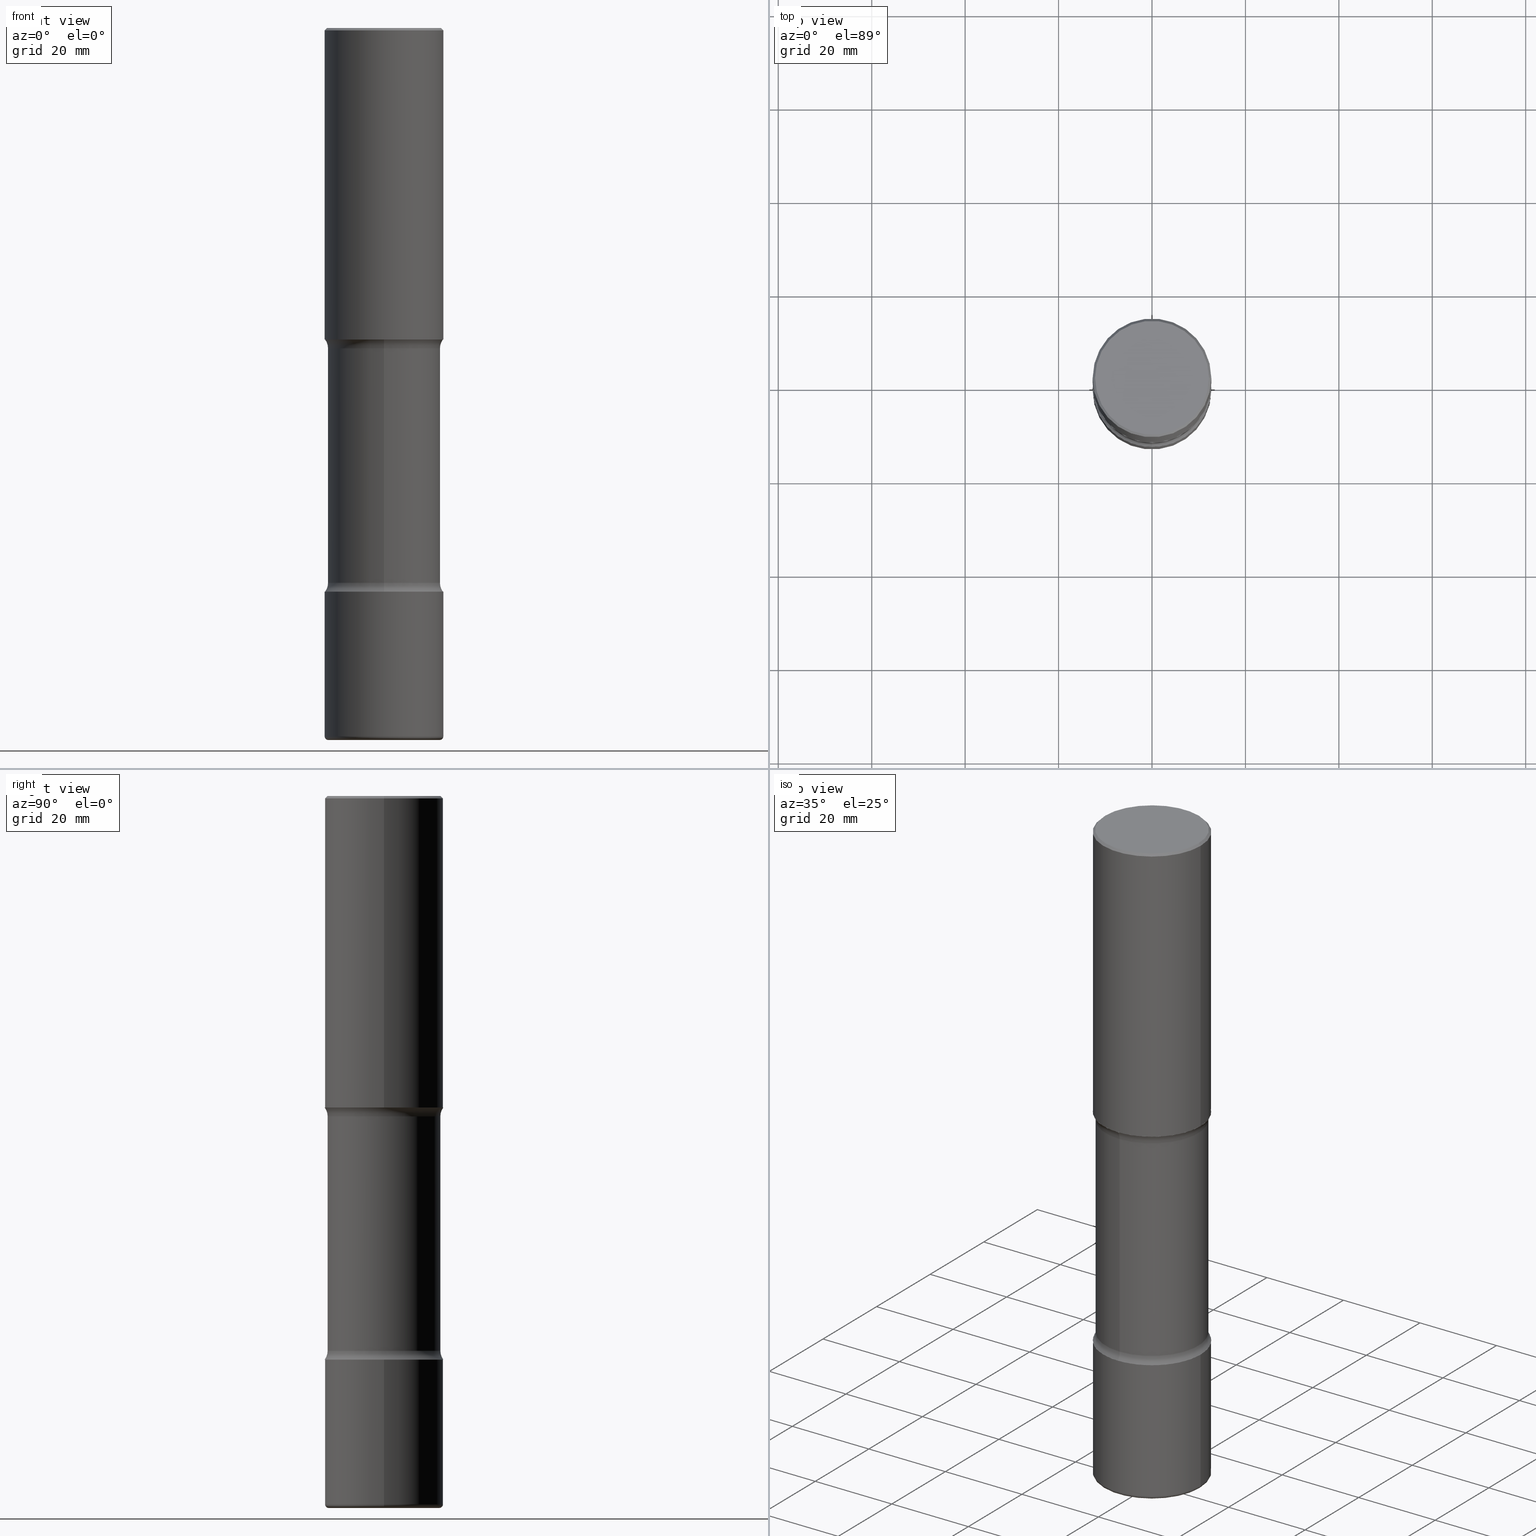
[diagram: canonical four-view strip — front | top / right | iso, engineering-drawing reading convention]
A machine part, canonical four-view strip (front | top / right | iso — engineering-drawing reading convention). The complete STEP part file that produces these views, byte-faithful:
ISO-10303-21;
HEADER;
FILE_DESCRIPTION (( 'STEP AP203' ),
    '1' );
FILE_NAME ('35139.STEP',
    '2024-03-01T23:17:25',
    ( '' ),
    ( '' ),
    'SwSTEP 2.0',
    'SolidWorks 2023',
    '' );
FILE_SCHEMA (( 'CONFIG_CONTROL_DESIGN' ));
ENDSEC;

DATA;
#1 = DIRECTION ( 'NONE',  ( 6.982962677686265133E-15, 1.000000000000000000, -3.379601449890201672E-15 ) ) ;
#2 = SHAPE_DEFINITION_REPRESENTATION ( #122, #461 ) ;
#3 = DIRECTION ( 'NONE',  ( -2.445468806185136597E-29, 3.491481338843145583E-15, 1.000000000000000000 ) ) ;
#4 = DIRECTION ( 'NONE',  ( 6.982962677686266711E-15, 1.000000000000000000, -3.278217592397112312E-15 ) ) ;
#5 = EDGE_CURVE ( 'NONE', #115, #240, #436, .T. ) ;
#6 = VECTOR ( 'NONE', #318, 39.37007874015748143 ) ;
#7 = ORIENTED_EDGE ( 'NONE', *, *, #510, .T. ) ;
#8 =( GEOMETRIC_REPRESENTATION_CONTEXT ( 3 ) GLOBAL_UNCERTAINTY_ASSIGNED_CONTEXT ( ( #18 ) ) GLOBAL_UNIT_ASSIGNED_CONTEXT ( ( #335, #535, #496 ) ) REPRESENTATION_CONTEXT ( 'NONE', 'WORKASPACE' ) );
#9 = ORIENTED_EDGE ( 'NONE', *, *, #444, .T. ) ;
#10 = CARTESIAN_POINT ( 'NONE',  ( 0.4700000000000003064, -2.412613605140612911E-14, -5.970000000000000639 ) ) ;
#11 = CC_DESIGN_APPROVAL ( #453, ( #282 ) ) ;
#12 = CARTESIAN_POINT ( 'NONE',  ( 4.890937612370298557E-31, -6.982962677686327354E-17, -0.02000000000000010103 ) ) ;
#13 = CC_DESIGN_PERSON_AND_ORGANIZATION_ASSIGNMENT ( #377, #379, ( #374 ) ) ;
#14 = VERTEX_POINT ( 'NONE', #60 ) ;
#15 = DIRECTION ( 'NONE',  ( -2.445468806185136597E-29, 3.491481338843145583E-15, 1.000000000000000000 ) ) ;
#16 = CARTESIAN_POINT ( 'NONE',  ( -0.4700000000000003064, -1.745038354453974416E-14, -5.999999999999999112 ) ) ;
#17 = ORIENTED_EDGE ( 'NONE', *, *, #52, .F. ) ;
#18 = UNCERTAINTY_MEASURE_WITH_UNIT (LENGTH_MEASURE( 1.000000000000000082E-05 ), #335, 'distance_accuracy_value', 'NONE');
#19 = EDGE_LOOP ( 'NONE', ( #72, #482, #411, #328 ) ) ;
#20 = DIRECTION ( 'NONE',  ( -2.445468806185136877E-29, 3.491481338843145188E-15, 1.000000000000000000 ) ) ;
#21 = LOCAL_TIME ( 18, 17, 25.00000000000000000, #416 ) ;
#22 = CALENDAR_DATE ( 2024, 1, 3 ) ;
#23 = ORIENTED_EDGE ( 'NONE', *, *, #486, .T. ) ;
#24 = PERSON_AND_ORGANIZATION ( #340, #230 ) ;
#25 = EDGE_CURVE ( 'NONE', #372, #491, #249, .T. ) ;
#26 = ORIENTED_EDGE ( 'NONE', *, *, #125, .T. ) ;
#27 = CARTESIAN_POINT ( 'NONE',  ( 0.5000000000000002220, -2.007601769834807990E-14, -4.750000000000000888 ) ) ;
#28 = APPLICATION_PROTOCOL_DEFINITION ( 'international standard', 'config_control_design', 1994, #487 ) ;
#29 = TOROIDAL_SURFACE ( 'NONE', #530, 0.5999999999999999778, 0.1249999999999999584 ) ;
#30 = LOCAL_TIME ( 18, 17, 25.00000000000000000, #494 ) ;
#31 = SECURITY_CLASSIFICATION_LEVEL ( 'unclassified' ) ;
#32 = ADVANCED_FACE ( 'NONE', ( #75 ), #106, .T. ) ;
#33 = ADVANCED_FACE ( 'NONE', ( #35 ), #526, .F. ) ;
#34 = FACE_OUTER_BOUND ( 'NONE', #151, .T. ) ;
#35 = FACE_OUTER_BOUND ( 'NONE', #442, .T. ) ;
#36 = DIRECTION ( 'NONE',  ( -2.445468806185136597E-29, 3.491481338843145583E-15, 1.000000000000000000 ) ) ;
#37 = CARTESIAN_POINT ( 'NONE',  ( 1.467281283711081734E-28, -2.094888803305886955E-14, -5.999999999999999112 ) ) ;
#38 = CYLINDRICAL_SURFACE ( 'NONE', #492, 0.4749999999999999778 ) ;
#39 = AXIS2_PLACEMENT_3D ( 'NONE', #127, #402, #433 ) ;
#40 = AXIS2_PLACEMENT_3D ( 'NONE', #37, #3, #429 ) ;
#41 = DIRECTION ( 'NONE',  ( 1.000000000000000000, -6.982962677686269077E-15, 4.883557194083114022E-29 ) ) ;
#42 = CC_DESIGN_PERSON_AND_ORGANIZATION_ASSIGNMENT ( #548, #294, ( #428 ) ) ;
#43 = DIRECTION ( 'NONE',  ( 2.523594115079346297E-29, -3.379601449890201278E-15, -1.000000000000000000 ) ) ;
#44 = DIRECTION ( 'NONE',  ( -2.445468806185136597E-29, 3.491481338843145583E-15, 1.000000000000000000 ) ) ;
#45 = EDGE_CURVE ( 'NONE', #112, #403, #479, .T. ) ;
#46 = CARTESIAN_POINT ( 'NONE',  ( 6.459692832343351385E-29, -9.631888214401318406E-15, -2.700000000000001954 ) ) ;
#47 = AXIS2_PLACEMENT_3D ( 'NONE', #258, #83, #546 ) ;
#48 = CIRCLE ( 'NONE', #322, 0.5000000000000004441 ) ;
#49 = APPROVAL_PERSON_ORGANIZATION ( #92, #453, #183 ) ;
#50 = VERTEX_POINT ( 'NONE', #279 ) ;
#51 = DIRECTION ( 'NONE',  ( -2.445468806185136597E-29, 3.491481338843145583E-15, 1.000000000000000000 ) ) ;
#52 = EDGE_CURVE ( 'NONE', #147, #14, #131, .T. ) ;
#53 = ADVANCED_FACE ( 'NONE', ( #362 ), #305, .T. ) ;
#54 = DIRECTION ( 'NONE',  ( 2.523594115079346016E-29, -3.379601449890201278E-15, -1.000000000000000000 ) ) ;
#55 = CARTESIAN_POINT ( 'NONE',  ( 1.161597682937940108E-28, -1.658453635950494339E-14, -4.750000000000000888 ) ) ;
#56 = CIRCLE ( 'NONE', #144, 0.4700000000000003064 ) ;
#57 = ORIENTED_EDGE ( 'NONE', *, *, #527, .T. ) ;
#58 = ADVANCED_FACE ( 'NONE', ( #34 ), #339, .T. ) ;
#59 = CIRCLE ( 'NONE', #431, 0.4799999999999998712 ) ;
#60 = CARTESIAN_POINT ( 'NONE',  ( 0.5000000000000001110, -2.433562493173671900E-14, -5.970000000000000639 ) ) ;
#61 = CARTESIAN_POINT ( 'NONE',  ( -3.430248998885706617E-15, -0.5000000000000099920, -2.624999999999999556 ) ) ;
#62 = ORIENTED_EDGE ( 'NONE', *, *, #351, .T. ) ;
#63 = CARTESIAN_POINT ( 'NONE',  ( 3.316907271901089495E-15, 0.4749999999999836020, -4.675000000000001599 ) ) ;
#64 = ORIENTED_EDGE ( 'NONE', *, *, #549, .F. ) ;
#65 = ORIENTED_EDGE ( 'NONE', *, *, #330, .T. ) ;
#66 = CARTESIAN_POINT ( 'NONE',  ( 3.491481338843251684E-15, 0.4999999999999837352, -4.750000000000002665 ) ) ;
#67 = ORIENTED_EDGE ( 'NONE', *, *, #52, .T. ) ;
#68 = COORDINATED_UNIVERSAL_TIME_OFFSET ( 5, 0, .BEHIND. ) ;
#69 = CIRCLE ( 'NONE', #465, 0.1249999999999999584 ) ;
#70 = AXIS2_PLACEMENT_3D ( 'NONE', #207, #130, #168 ) ;
#71 = ORIENTED_EDGE ( 'NONE', *, *, #201, .T. ) ;
#72 = ORIENTED_EDGE ( 'NONE', *, *, #311, .T. ) ;
#73 = EDGE_CURVE ( 'NONE', #253, #489, #56, .T. ) ;
#74 = EDGE_LOOP ( 'NONE', ( #200, #445, #323, #523 ) ) ;
#75 = FACE_OUTER_BOUND ( 'NONE', #142, .T. ) ;
#76 = CALENDAR_DATE ( 2024, 1, 3 ) ;
#77 = PERSON_AND_ORGANIZATION ( #340, #230 ) ;
#78 = ADVANCED_FACE ( 'NONE', ( #552 ), #422, .F. ) ;
#79 = VECTOR ( 'NONE', #301, 39.37007874015748143 ) ;
#80 = CARTESIAN_POINT ( 'NONE',  ( -0.5000000000000004441, 3.552713678800504085E-15, -2.459467545127455133E-29 ) ) ;
#81 = CIRCLE ( 'NONE', #406, 0.5000000000000000000 ) ;
#82 = PERSON_AND_ORGANIZATION ( #340, #230 ) ;
#83 = DIRECTION ( 'NONE',  ( 7.105427357601001859E-15, 1.000000000000000000, -3.491481338843145583E-15 ) ) ;
#84 = CARTESIAN_POINT ( 'NONE',  ( -0.4799999999999998712, 3.386736898677838408E-15, 1.280553747027767124E-17 ) ) ;
#85 = APPROVAL ( #211, 'UNSPECIFIED' ) ;
#86 = CARTESIAN_POINT ( 'NONE',  ( 1.459944877292526719E-28, -2.084414359289358249E-14, -5.970000000000000639 ) ) ;
#87 = CIRCLE ( 'NONE', #272, 0.4799999999999998712 ) ;
#88 = ADVANCED_FACE ( 'NONE', ( #179 ), #175, .F. ) ;
#89 = CARTESIAN_POINT ( 'NONE',  ( 1.143256666891551449E-28, -1.632267525909170681E-14, -4.674999999999999822 ) ) ;
#90 = DIRECTION ( 'NONE',  ( 2.523594115079346016E-29, -3.379601449890201278E-15, -1.000000000000000000 ) ) ;
#91 = FACE_OUTER_BOUND ( 'NONE', #525, .T. ) ;
#92 = PERSON_AND_ORGANIZATION ( #340, #230 ) ;
#93 = CARTESIAN_POINT ( 'NONE',  ( 0.000000000000000000, 0.000000000000000000, 0.000000000000000000 ) ) ;
#94 = EDGE_CURVE ( 'NONE', #403, #240, #222, .T. ) ;
#95 = DIRECTION ( 'NONE',  ( 1.000000000000000000, -6.982962677686270655E-15, 0.000000000000000000 ) ) ;
#96 = ADVANCED_FACE ( 'NONE', ( #198 ), #229, .T. ) ;
#97 = AXIS2_PLACEMENT_3D ( 'NONE', #506, #36, #41 ) ;
#98 = CIRCLE ( 'NONE', #307, 0.1249999999999999584 ) ;
#99 = EDGE_LOOP ( 'NONE', ( #107, #169, #358, #334 ) ) ;
#100 = DIRECTION ( 'NONE',  ( 2.523594115079346297E-29, -3.379601449890201278E-15, -1.000000000000000000 ) ) ;
#101 = VERTEX_POINT ( 'NONE', #456 ) ;
#102 = CARTESIAN_POINT ( 'NONE',  ( 1.161597682937940108E-28, -1.658453635950494339E-14, -4.750000000000000888 ) ) ;
#103 = APPROVAL ( #454, 'UNSPECIFIED' ) ;
#104 = EDGE_LOOP ( 'NONE', ( #245, #446, #156, #154 ) ) ;
#105 = CARTESIAN_POINT ( 'NONE',  ( -0.5000000000000000000, 3.421651712066270057E-15, -0.02000000000000010103 ) ) ;
#106 = CONICAL_SURFACE ( 'NONE', #539, 0.5000000000000000000, 0.7853981633974485010 ) ;
#107 = ORIENTED_EDGE ( 'NONE', *, *, #549, .T. ) ;
#108 = VECTOR ( 'NONE', #43, 39.37007874015748143 ) ;
#109 = DIRECTION ( 'NONE',  ( 2.523594115079346016E-29, -3.379601449890201278E-15, -1.000000000000000000 ) ) ;
#110 = DIRECTION ( 'NONE',  ( 6.982962677686265133E-15, 1.000000000000000000, -2.300503573612011422E-15 ) ) ;
#111 = VERTEX_POINT ( 'NONE', #27 ) ;
#112 = VERTEX_POINT ( 'NONE', #84 ) ;
#113 = DIRECTION ( 'NONE',  ( 1.000000000000000000, -6.982962677686267499E-15, 0.000000000000000000 ) ) ;
#114 = ORIENTED_EDGE ( 'NONE', *, *, #221, .T. ) ;
#115 = VERTEX_POINT ( 'NONE', #216 ) ;
#116 = EDGE_CURVE ( 'NONE', #147, #441, #497, .T. ) ;
#117 = ORIENTED_EDGE ( 'NONE', *, *, #73, .T. ) ;
#118 = LENGTH_MEASURE_WITH_UNIT ( LENGTH_MEASURE( 0.02539999999999999897 ), #256 );
#119 = CIRCLE ( 'NONE', #146, 0.5000000000000004441 ) ;
#120 = EDGE_LOOP ( 'NONE', ( #234, #528 ) ) ;
#121 = DATE_AND_TIME ( #369, #159 ) ;
#122 = PRODUCT_DEFINITION_SHAPE ( 'NONE', 'NONE',  #428 ) ;
#123 = EDGE_LOOP ( 'NONE', ( #291, #9, #7, #162 ) ) ;
#124 = MANIFOLD_SOLID_BREP ( 'Body-Move/Copy2[2]', #331 ) ;
#125 = EDGE_CURVE ( 'NONE', #489, #147, #447, .T. ) ;
#126 = DATE_AND_TIME ( #22, #30 ) ;
#127 = CARTESIAN_POINT ( 'NONE',  ( 1.161597682937940108E-28, -1.658453635950494339E-14, -4.750000000000000888 ) ) ;
#128 = MANIFOLD_SOLID_BREP ( 'Body-Move/Copy2[1]', #337 ) ;
#129 = DIRECTION ( 'NONE',  ( 1.000000000000000000, -6.982962677686266711E-15, 0.000000000000000000 ) ) ;
#130 = DIRECTION ( 'NONE',  ( 2.438088387897960049E-29, -3.491481338843145188E-15, -1.000000000000000000 ) ) ;
#131 = CIRCLE ( 'NONE', #177, 0.5000000000000005551 ) ;
#132 = MANIFOLD_SOLID_BREP ( 'Body-Move/Copy2[4]', #380 ) ;
#133 = CARTESIAN_POINT ( 'NONE',  ( 4.102919532620488144E-30, -1.777045969450568052E-14, -2.625000000000000444 ) ) ;
#134 = DIRECTION ( 'NONE',  ( 6.982962677686265133E-15, 1.000000000000000000, -3.379601449890201672E-15 ) ) ;
#135 = DIRECTION ( 'NONE',  ( -2.445468806185136597E-29, 3.491481338843145583E-15, 1.000000000000000000 ) ) ;
#136 = AXIS2_PLACEMENT_3D ( 'NONE', #247, #394, #283 ) ;
#137 = CARTESIAN_POINT ( 'NONE',  ( 0.5000000000000004441, -1.265661985330638997E-14, -2.624999999999999556 ) ) ;
#138 = DIRECTION ( 'NONE',  ( 2.523594115079346016E-29, -3.379601449890201278E-15, -1.000000000000000000 ) ) ;
#139 = CARTESIAN_POINT ( 'NONE',  ( 0.5000000000000000000, -3.500078625662629079E-15, -0.02000000000000010103 ) ) ;
#140 = PLANE ( 'NONE',  #280 ) ;
#141 = ADVANCED_FACE ( 'NONE', ( #499 ), #38, .T. ) ;
#142 = EDGE_LOOP ( 'NONE', ( #450, #248, #375, #483 ) ) ;
#143 = DIRECTION ( 'NONE',  ( 1.000000000000000000, -6.982962677686266711E-15, 4.876036955247130525E-29 ) ) ;
#144 = AXIS2_PLACEMENT_3D ( 'NONE', #417, #263, #463 ) ;
#145 = AXIS2_PLACEMENT_3D ( 'NONE', #432, #233, #396 ) ;
#146 = AXIS2_PLACEMENT_3D ( 'NONE', #285, #434, #443 ) ;
#147 = VERTEX_POINT ( 'NONE', #536 ) ;
#148 = DIRECTION ( 'NONE',  ( -2.445468806185136597E-29, 3.491481338843145583E-15, 1.000000000000000000 ) ) ;
#149 = ADVANCED_FACE ( 'NONE', ( #288 ), #254, .F. ) ;
#150 = ORIENTED_EDGE ( 'NONE', *, *, #336, .T. ) ;
#151 = EDGE_LOOP ( 'NONE', ( #522, #67, #293, #210 ) ) ;
#152 = DIRECTION ( 'NONE',  ( 1.000000000000000000, -6.860497997771530774E-15, 4.842169013103094469E-29 ) ) ;
#153 = ADVANCED_FACE ( 'NONE', ( #186 ), #349, .T. ) ;
#154 = ORIENTED_EDGE ( 'NONE', *, *, #393, .F. ) ;
#155 = CARTESIAN_POINT ( 'NONE',  ( -0.5000000000000002220, -1.516162629739875886E-14, -4.750000000000000888 ) ) ;
#156 = ORIENTED_EDGE ( 'NONE', *, *, #389, .T. ) ;
#157 = AXIS2_PLACEMENT_3D ( 'NONE', #133, #302, #378 ) ;
#158 = VERTEX_POINT ( 'NONE', #137 ) ;
#159 = LOCAL_TIME ( 18, 17, 25.00000000000000000, #68 ) ;
#160 = DIMENSIONAL_EXPONENTS ( 1.000000000000000000, 0.000000000000000000, 0.000000000000000000, 0.000000000000000000, 0.000000000000000000, 0.000000000000000000, 0.000000000000000000 ) ;
#161 = CARTESIAN_POINT ( 'NONE',  ( 1.477046947322857785E-28, -2.080903817186768789E-14, -5.999999999999999112 ) ) ;
#162 = ORIENTED_EDGE ( 'NONE', *, *, #221, .F. ) ;
#163 = EDGE_LOOP ( 'NONE', ( #290, #65, #57, #17 ) ) ;
#164 = ADVANCED_FACE ( 'NONE', ( #91 ), #269, .F. ) ;
#165 = CARTESIAN_POINT ( 'NONE',  ( 4.890937612370298557E-31, -6.982962677686327354E-17, -0.02000000000000010103 ) ) ;
#166 = ADVANCED_FACE ( 'NONE', ( #558 ), #140, .F. ) ;
#167 = ORIENTED_EDGE ( 'NONE', *, *, #370, .F. ) ;
#168 = DIRECTION ( 'NONE',  ( -1.000000000000000000, 6.982962677686265922E-15, -4.876176775795935793E-29 ) ) ;
#169 = ORIENTED_EDGE ( 'NONE', *, *, #370, .T. ) ;
#170 = DIRECTION ( 'NONE',  ( -1.000000000000000000, 6.982962677686265922E-15, -4.876176775795935793E-29 ) ) ;
#171 = AXIS2_PLACEMENT_3D ( 'NONE', #188, #421, #426 ) ;
#172 = ORIENTED_EDGE ( 'NONE', *, *, #201, .F. ) ;
#173 = DIRECTION ( 'NONE',  ( 1.000000000000000000, -6.982962677686264344E-15, 0.000000000000000000 ) ) ;
#174 = DIRECTION ( 'NONE',  ( -2.445468806185136597E-29, 3.491481338843145583E-15, 1.000000000000000000 ) ) ;
#175 = PLANE ( 'NONE',  #157 ) ;
#176 = MECHANICAL_CONTEXT ( 'NONE', #205, 'mechanical' ) ;
#177 = AXIS2_PLACEMENT_3D ( 'NONE', #241, #15, #197 ) ;
#178 = DIRECTION ( 'NONE',  ( 1.000000000000000000, -6.982962677686266711E-15, 4.876176775795935232E-29 ) ) ;
#179 = FACE_OUTER_BOUND ( 'NONE', #397, .T. ) ;
#180 = CARTESIAN_POINT ( 'NONE',  ( 6.459692832343351385E-29, -9.631888214401318406E-15, -2.700000000000001954 ) ) ;
#181 = DIRECTION ( 'NONE',  ( -6.982962677686265922E-15, -1.000000000000000000, 3.379601449890201278E-15 ) ) ;
#182 = DIRECTION ( 'NONE',  ( -2.445468806185136597E-29, 3.491481338843145583E-15, 1.000000000000000000 ) ) ;
#183 = APPROVAL_ROLE ( '' ) ;
#184 = CARTESIAN_POINT ( 'NONE',  ( -3.344492773913506542E-15, -0.4750000000000162426, -4.674999999999998934 ) ) ;
#185 = CIRCLE ( 'NONE', #145, 0.1250000000000000278 ) ;
#186 = FACE_OUTER_BOUND ( 'NONE', #99, .T. ) ;
#187 = FACE_OUTER_BOUND ( 'NONE', #192, .T. ) ;
#188 = CARTESIAN_POINT ( 'NONE',  ( 6.253339334835791142E-29, -9.402883278488267648E-15, -2.625000000000000888 ) ) ;
#189 = CARTESIAN_POINT ( 'NONE',  ( 0.5000000000000002220, -3.491481338843134933E-15, 2.438088387897969017E-29 ) ) ;
#190 = CC_DESIGN_PERSON_AND_ORGANIZATION_ASSIGNMENT ( #77, #261, ( #458 ) ) ;
#191 = CIRCLE ( 'NONE', #501, 0.4749999999999999778 ) ;
#192 = EDGE_LOOP ( 'NONE', ( #435, #208, #206, #246 ) ) ;
#193 = DIRECTION ( 'NONE',  ( -6.982962677686266711E-15, -1.000000000000000000, 3.491481338843145583E-15 ) ) ;
#194 = EDGE_CURVE ( 'NONE', #372, #320, #438, .T. ) ;
#195 = DIRECTION ( 'NONE',  ( 2.523594115079346016E-29, -3.379601449890201278E-15, -1.000000000000000000 ) ) ;
#196 = EDGE_LOOP ( 'NONE', ( #326, #329 ) ) ;
#197 = DIRECTION ( 'NONE',  ( 1.000000000000000000, -6.982962677686270655E-15, 0.000000000000000000 ) ) ;
#198 = FACE_OUTER_BOUND ( 'NONE', #19, .T. ) ;
#199 = CARTESIAN_POINT ( 'NONE',  ( 1.142670727074844742E-28, -1.633106625076317916E-14, -4.674999999999999822 ) ) ;
#200 = ORIENTED_EDGE ( 'NONE', *, *, #5, .F. ) ;
#201 = EDGE_CURVE ( 'NONE', #514, #408, #213, .T. ) ;
#202 = AXIS2_PLACEMENT_3D ( 'NONE', #102, #54, #400 ) ;
#203 = DIRECTION ( 'NONE',  ( 6.860497997771532351E-15, 1.000000000000000000, 0.000000000000000000 ) ) ;
#204 = LOCAL_TIME ( 18, 17, 25.00000000000000000, #220 ) ;
#205 = APPLICATION_CONTEXT ( 'configuration controlled 3d designs of mechanical parts and assemblies' ) ;
#206 = ORIENTED_EDGE ( 'NONE', *, *, #393, .T. ) ;
#207 = CARTESIAN_POINT ( 'NONE',  ( 1.467281283711081734E-28, -2.094888803305886955E-14, -5.999999999999999112 ) ) ;
#208 = ORIENTED_EDGE ( 'NONE', *, *, #425, .F. ) ;
#209 = DIRECTION ( 'NONE',  ( 2.438088387897960049E-29, -3.491481338843145188E-15, -1.000000000000000000 ) ) ;
#210 = ORIENTED_EDGE ( 'NONE', *, *, #452, .F. ) ;
#211 = APPROVAL_STATUS ( 'not_yet_approved' ) ;
#212 = ORIENTED_EDGE ( 'NONE', *, *, #486, .F. ) ;
#213 = CIRCLE ( 'NONE', #171, 0.5000000000000005551 ) ;
#214 = DATE_AND_TIME ( #76, #21 ) ;
#215 = CIRCLE ( 'NONE', #560, 0.5000000000000005551 ) ;
#216 = CARTESIAN_POINT ( 'NONE',  ( 0.4799999999999998712, -3.396558832296481704E-15, 1.280553747032483033E-17 ) ) ;
#217 = CARTESIAN_POINT ( 'NONE',  ( 0.000000000000000000, 0.000000000000000000, 0.000000000000000000 ) ) ;
#218 = CARTESIAN_POINT ( 'NONE',  ( 0.000000000000000000, 0.000000000000000000, 0.000000000000000000 ) ) ;
#219 = APPLICATION_PROTOCOL_DEFINITION ( 'international standard', 'config_control_design', 1994, #205 ) ;
#220 = COORDINATED_UNIVERSAL_TIME_OFFSET ( 5, 0, .BEHIND. ) ;
#221 = EDGE_CURVE ( 'NONE', #50, #514, #69, .T. ) ;
#222 = CIRCLE ( 'NONE', #559, 0.5000000000000000000 ) ;
#223 = CARTESIAN_POINT ( 'NONE',  ( 1.161597682937940108E-28, -1.658453635950494339E-14, -4.750000000000000888 ) ) ;
#224 = CIRCLE ( 'NONE', #517, 0.4749999999999999778 ) ;
#225 = DATE_AND_TIME ( #507, #273 ) ;
#226 = DIRECTION ( 'NONE',  ( -1.000000000000000000, 6.982962677686265922E-15, -4.883557194083112340E-29 ) ) ;
#227 = DIRECTION ( 'NONE',  ( -2.445468806185136597E-29, 3.491481338843145583E-15, 1.000000000000000000 ) ) ;
#228 = AXIS2_PLACEMENT_3D ( 'NONE', #409, #209, #170 ) ;
#229 = CYLINDRICAL_SURFACE ( 'NONE', #405, 0.5000000000000004441 ) ;
#230 = ORGANIZATION ( 'UNSPECIFIED', 'UNSPECIFIED', '' ) ;
#231 = CALENDAR_DATE ( 2024, 1, 3 ) ;
#232 = LINE ( 'NONE', #390, #108 ) ;
#233 = DIRECTION ( 'NONE',  ( -1.000000000000000000, 6.982962677686265922E-15, -4.883557194083112340E-29 ) ) ;
#234 = ORIENTED_EDGE ( 'NONE', *, *, #73, .F. ) ;
#235 = CARTESIAN_POINT ( 'NONE',  ( -3.131554243005659264E-46, 4.471029511141341874E-32, 1.280553747030123384E-17 ) ) ;
#236 = ADVANCED_FACE ( 'NONE', ( #187 ), #237, .F. ) ;
#237 = TOROIDAL_SURFACE ( 'NONE', #382, 0.5999999999999998668, 0.1250000000000000278 ) ;
#238 = CARTESIAN_POINT ( 'NONE',  ( 1.161597682937940108E-28, -1.658453635950494339E-14, -4.750000000000000888 ) ) ;
#239 = DIRECTION ( 'NONE',  ( -1.000000000000000000, 6.982962677686266711E-15, 0.000000000000000000 ) ) ;
#240 = VERTEX_POINT ( 'NONE', #513 ) ;
#241 = CARTESIAN_POINT ( 'NONE',  ( 1.459944877292526719E-28, -2.084414359289358249E-14, -5.970000000000000639 ) ) ;
#242 = CARTESIAN_POINT ( 'NONE',  ( 4.890937612370298557E-31, -6.982962677686327354E-17, -0.02000000000000010103 ) ) ;
#243 = CARTESIAN_POINT ( 'NONE',  ( 6.253339334835791142E-29, -9.402883278488267648E-15, -2.625000000000000888 ) ) ;
#244 = EDGE_CURVE ( 'NONE', #14, #111, #384, .T. ) ;
#245 = ORIENTED_EDGE ( 'NONE', *, *, #25, .F. ) ;
#246 = ORIENTED_EDGE ( 'NONE', *, *, #504, .T. ) ;
#247 = CARTESIAN_POINT ( 'NONE',  ( 1.142670727074844742E-28, -1.633106625076317916E-14, -4.674999999999999822 ) ) ;
#248 = ORIENTED_EDGE ( 'NONE', *, *, #5, .T. ) ;
#249 = CIRCLE ( 'NONE', #345, 0.5000000000000002220 ) ;
#250 = APPROVAL_ROLE ( '' ) ;
#251 = ORIENTED_EDGE ( 'NONE', *, *, #413, .T. ) ;
#252 = ORIENTED_EDGE ( 'NONE', *, *, #311, .F. ) ;
#253 = VERTEX_POINT ( 'NONE', #508 ) ;
#254 = PLANE ( 'NONE',  #228 ) ;
#255 = AXIS2_PLACEMENT_3D ( 'NONE', #547, #420, #381 ) ;
#256 =( LENGTH_UNIT ( ) NAMED_UNIT ( * ) SI_UNIT ( $, .METRE. ) );
#257 = VECTOR ( 'NONE', #274, 39.37007874015748143 ) ;
#258 = CARTESIAN_POINT ( 'NONE',  ( -0.4700000000000003064, -1.750459273482111023E-14, -5.970000000000000639 ) ) ;
#259 = CC_DESIGN_PERSON_AND_ORGANIZATION_ASSIGNMENT ( #82, #455, ( #458 ) ) ;
#260 = DIRECTION ( 'NONE',  ( 1.000000000000000000, -6.982962677686266711E-15, 4.876176775795935232E-29 ) ) ;
#261 = PERSON_AND_ORGANIZATION_ROLE ( 'design_supplier' ) ;
#262 = ADVANCED_FACE ( 'NONE', ( #343 ), #29, .F. ) ;
#263 = DIRECTION ( 'NONE',  ( -2.445468806185136597E-29, 3.491481338843145583E-15, 1.000000000000000000 ) ) ;
#264 = DIRECTION ( 'NONE',  ( 6.860497997771532351E-15, 1.000000000000000000, 0.000000000000000000 ) ) ;
#265 = CARTESIAN_POINT ( 'NONE',  ( 4.890937612370298557E-31, -6.982962677686327354E-17, -0.02000000000000010103 ) ) ;
#266 = DATE_TIME_ROLE ( 'classification_date' ) ;
#267 = DIRECTION ( 'NONE',  ( -2.445468806185136597E-29, 3.491481338843145583E-15, 1.000000000000000000 ) ) ;
#268 = AXIS2_PLACEMENT_3D ( 'NONE', #10, #193, #356 ) ;
#269 = PLANE ( 'NONE',  #296 ) ;
#270 = LINE ( 'NONE', #327, #257 ) ;
#271 = DIRECTION ( 'NONE',  ( 6.982962677686265133E-15, 1.000000000000000000, -3.379601449890201672E-15 ) ) ;
#272 = AXIS2_PLACEMENT_3D ( 'NONE', #516, #267, #143 ) ;
#273 = LOCAL_TIME ( 18, 17, 25.00000000000000000, #553 ) ;
#274 = DIRECTION ( 'NONE',  ( -2.445468806185136877E-29, 3.491481338843145188E-15, 1.000000000000000000 ) ) ;
#275 = ORIENTED_EDGE ( 'NONE', *, *, #541, .F. ) ;
#276 = DIRECTION ( 'NONE',  ( 1.000000000000000000, -6.982962677686266711E-15, 4.876036955247130525E-29 ) ) ;
#277 = VERTEX_POINT ( 'NONE', #467 ) ;
#278 = CARTESIAN_POINT ( 'NONE',  ( -3.258736548941329344E-15, -0.4750000000000207945, -5.999999999999998224 ) ) ;
#279 = CARTESIAN_POINT ( 'NONE',  ( 3.316907271901040585E-15, 0.4749999999999903744, -2.700000000000003286 ) ) ;
#280 = AXIS2_PLACEMENT_3D ( 'NONE', #471, #342, #181 ) ;
#281 = AXIS2_PLACEMENT_3D ( 'NONE', #297, #333, #459 ) ;
#282 = SECURITY_CLASSIFICATION ( '', '', #31 ) ;
#283 = DIRECTION ( 'NONE',  ( 6.982962677686265133E-15, 1.000000000000000000, -3.450755360418017133E-15 ) ) ;
#284 = EDGE_LOOP ( 'NONE', ( #477, #538 ) ) ;
#285 = CARTESIAN_POINT ( 'NONE',  ( 6.419355616235982445E-29, -9.165138514463255034E-15, -2.624999999999999556 ) ) ;
#286 = EDGE_LOOP ( 'NONE', ( #167, #23, #251, #368 ) ) ;
#287 = DESIGN_CONTEXT ( 'detailed design', #487, 'design' ) ;
#288 = FACE_OUTER_BOUND ( 'NONE', #284, .T. ) ;
#289 = AXIS2_PLACEMENT_3D ( 'NONE', #46, #387, #1 ) ;
#290 = ORIENTED_EDGE ( 'NONE', *, *, #125, .F. ) ;
#291 = ORIENTED_EDGE ( 'NONE', *, *, #476, .F. ) ;
#292 = PERSON_AND_ORGANIZATION ( #340, #230 ) ;
#293 = ORIENTED_EDGE ( 'NONE', *, *, #244, .T. ) ;
#294 = PERSON_AND_ORGANIZATION_ROLE ( 'creator' ) ;
#295 = PRODUCT_RELATED_PRODUCT_CATEGORY ( 'detail', '', ( #374 ) ) ;
#296 = AXIS2_PLACEMENT_3D ( 'NONE', #321, #304, #310 ) ;
#297 = CARTESIAN_POINT ( 'NONE',  ( 0.000000000000000000, 0.000000000000000000, 0.000000000000000000 ) ) ;
#298 = ADVANCED_FACE ( 'NONE', ( #430 ), #365, .T. ) ;
#299 = APPROVAL_PERSON_ORGANIZATION ( #292, #103, #543 ) ;
#300 = ADVANCED_FACE ( 'NONE', ( #464 ), #509, .T. ) ;
#301 = DIRECTION ( 'NONE',  ( -2.445468806185136877E-29, 3.491481338843145188E-15, 1.000000000000000000 ) ) ;
#302 = DIRECTION ( 'NONE',  ( 2.523594115079345736E-29, -3.379601449890201278E-15, -1.000000000000000000 ) ) ;
#303 = DATE_AND_TIME ( #231, #204 ) ;
#304 = DIRECTION ( 'NONE',  ( -2.438088387897960049E-29, 3.491481338843145188E-15, 1.000000000000000000 ) ) ;
#305 = TOROIDAL_SURFACE ( 'NONE', #97, 0.4700000000000003064, 0.02999999999999927031 ) ;
#306 = FACE_OUTER_BOUND ( 'NONE', #123, .T. ) ;
#307 = AXIS2_PLACEMENT_3D ( 'NONE', #324, #152, #203 ) ;
#308 = DIRECTION ( 'NONE',  ( 6.982962677686266711E-15, 1.000000000000000000, -3.278217592397114284E-15 ) ) ;
#309 = CARTESIAN_POINT ( 'NONE',  ( 1.459944877292526719E-28, -2.084414359289358249E-14, -5.970000000000000639 ) ) ;
#310 = DIRECTION ( 'NONE',  ( 1.000000000000000000, -6.982962677686265922E-15, 4.876176775795935793E-29 ) ) ;
#311 = EDGE_CURVE ( 'NONE', #14, #147, #500, .T. ) ;
#312 = AXIS2_PLACEMENT_3D ( 'NONE', #12, #529, #239 ) ;
#313 = DIRECTION ( 'NONE',  ( -2.445468806185136597E-29, 3.491481338843145583E-15, 1.000000000000000000 ) ) ;
#314 = CARTESIAN_POINT ( 'NONE',  ( -0.5000000000000000000, 3.421651712066270057E-15, -0.02000000000000010103 ) ) ;
#315 = ORIENTED_EDGE ( 'NONE', *, *, #444, .F. ) ;
#316 = DIRECTION ( 'NONE',  ( 2.523594115079346016E-29, -3.379601449890201278E-15, -1.000000000000000000 ) ) ;
#317 = EDGE_CURVE ( 'NONE', #115, #112, #87, .T. ) ;
#318 = DIRECTION ( 'NONE',  ( 0.7071067811865476838, -7.319954787623257623E-15, -0.7071067811865473507 ) ) ;
#319 = DIRECTION ( 'NONE',  ( 6.982962677686265133E-15, 1.000000000000000000, -3.450755360418016739E-15 ) ) ;
#320 = VERTEX_POINT ( 'NONE', #184 ) ;
#321 = CARTESIAN_POINT ( 'NONE',  ( 6.419355616235982445E-29, -9.165138514463255034E-15, -2.624999999999999556 ) ) ;
#322 = AXIS2_PLACEMENT_3D ( 'NONE', #373, #174, #173 ) ;
#323 = ORIENTED_EDGE ( 'NONE', *, *, #45, .T. ) ;
#324 = CARTESIAN_POINT ( 'NONE',  ( -4.116298798662853620E-15, -0.6000000000000096367, -2.699999999999999734 ) ) ;
#325 = CARTESIAN_POINT ( 'NONE',  ( 0.000000000000000000, 0.000000000000000000, 0.000000000000000000 ) ) ;
#326 = ORIENTED_EDGE ( 'NONE', *, *, #425, .T. ) ;
#327 = CARTESIAN_POINT ( 'NONE',  ( -0.5000000000000002220, 3.552713678800502507E-15, -2.459467545127454012E-29 ) ) ;
#328 = ORIENTED_EDGE ( 'NONE', *, *, #244, .F. ) ;
#329 = ORIENTED_EDGE ( 'NONE', *, *, #25, .T. ) ;
#330 = EDGE_CURVE ( 'NONE', #489, #253, #531, .T. ) ;
#331 = CLOSED_SHELL ( 'NONE', ( #153, #32, #407, #149, #164, #300 ) ) ;
#332 = AXIS2_PLACEMENT_3D ( 'NONE', #309, #227, #95 ) ;
#333 = DIRECTION ( 'NONE',  ( 0.000000000000000000, 0.000000000000000000, 1.000000000000000000 ) ) ;
#334 = ORIENTED_EDGE ( 'NONE', *, *, #413, .F. ) ;
#335 =( CONVERSION_BASED_UNIT ( 'INCH', #118 ) LENGTH_UNIT ( ) NAMED_UNIT ( #160 ) );
#336 = EDGE_CURVE ( 'NONE', #50, #410, #232, .T. ) ;
#337 = CLOSED_SHELL ( 'NONE', ( #96, #298, #554, #53, #58, #33 ) ) ;
#338 = VECTOR ( 'NONE', #20, 39.37007874015748143 ) ;
#339 = CYLINDRICAL_SURFACE ( 'NONE', #470, 0.5000000000000004441 ) ;
#340 = PERSON ( 'UNSPECIFIED', 'UNSPECIFIED', 'UNSPECIFIED', ('UNSPECIFIED'), ('UNSPECIFIED'), ('UNSPECIFIED') ) ;
#341 = APPROVAL_STATUS ( 'not_yet_approved' ) ;
#342 = DIRECTION ( 'NONE',  ( -2.523594115079345736E-29, 3.379601449890201278E-15, 1.000000000000000000 ) ) ;
#343 = FACE_OUTER_BOUND ( 'NONE', #451, .T. ) ;
#344 = DIRECTION ( 'NONE',  ( 1.000000000000000000, -6.982962677686266711E-15, 4.876176775795935793E-29 ) ) ;
#345 = AXIS2_PLACEMENT_3D ( 'NONE', #238, #109, #308 ) ;
#346 = DIRECTION ( 'NONE',  ( 1.000000000000000000, -6.982962677686267499E-15, 0.000000000000000000 ) ) ;
#347 = CIRCLE ( 'NONE', #449, 0.5000000000000002220 ) ;
#348 = CARTESIAN_POINT ( 'NONE',  ( 4.189777606611823924E-15, 0.5999999999999903189, -2.700000000000004174 ) ) ;
#349 = CYLINDRICAL_SURFACE ( 'NONE', #457, 0.5000000000000002220 ) ;
#350 = DIRECTION ( 'NONE',  ( -2.445468806185136877E-29, 3.491481338843145188E-15, 1.000000000000000000 ) ) ;
#351 = EDGE_CURVE ( 'NONE', #111, #441, #347, .T. ) ;
#352 = DIRECTION ( 'NONE',  ( 6.982962677686265133E-15, 1.000000000000000000, -3.450755360418017133E-15 ) ) ;
#353 = VECTOR ( 'NONE', #475, 39.37007874015748143 ) ;
#354 = CIRCLE ( 'NONE', #383, 0.5000000000000002220 ) ;
#355 = ORIENTED_EDGE ( 'NONE', *, *, #510, .F. ) ;
#356 = DIRECTION ( 'NONE',  ( 1.000000000000000000, -6.982962677686308520E-15, 0.000000000000000000 ) ) ;
#357 = ADVANCED_FACE ( 'NONE', ( #306 ), #366, .F. ) ;
#358 = ORIENTED_EDGE ( 'NONE', *, *, #398, .F. ) ;
#359 = ORIENTED_EDGE ( 'NONE', *, *, #505, .T. ) ;
#360 = CARTESIAN_POINT ( 'NONE',  ( 6.442608893466743677E-29, -9.656353387230035032E-15, -2.700000000000001954 ) ) ;
#361 = ORIENTED_EDGE ( 'NONE', *, *, #527, .F. ) ;
#362 = FACE_OUTER_BOUND ( 'NONE', #163, .T. ) ;
#363 = EDGE_LOOP ( 'NONE', ( #534, #495, #150, #401 ) ) ;
#364 = CARTESIAN_POINT ( 'NONE',  ( 3.491481338843199225E-15, 0.4999999999999911182, -2.625000000000002665 ) ) ;
#365 = TOROIDAL_SURFACE ( 'NONE', #414, 0.4700000000000003064, 0.02999999999999927031 ) ;
#366 = TOROIDAL_SURFACE ( 'NONE', #289, 0.5999999999999999778, 0.1249999999999999584 ) ;
#367 = FACE_OUTER_BOUND ( 'NONE', #363, .T. ) ;
#368 = ORIENTED_EDGE ( 'NONE', *, *, #94, .F. ) ;
#369 = CALENDAR_DATE ( 2024, 1, 3 ) ;
#370 = EDGE_CURVE ( 'NONE', #277, #403, #270, .T. ) ;
#371 = EDGE_LOOP ( 'NONE', ( #117, #26, #252, #361 ) ) ;
#372 = VERTEX_POINT ( 'NONE', #478 ) ;
#373 = CARTESIAN_POINT ( 'NONE',  ( 6.419355616235982445E-29, -9.165138514463255034E-15, -2.624999999999999556 ) ) ;
#374 = PRODUCT ( '35139', '35139', '', ( #176 ) ) ;
#375 = ORIENTED_EDGE ( 'NONE', *, *, #398, .T. ) ;
#376 = APPROVAL_DATE_TIME ( #214, #103 ) ;
#377 = PERSON_AND_ORGANIZATION ( #340, #230 ) ;
#378 = DIRECTION ( 'NONE',  ( 6.982962677686265922E-15, 1.000000000000000000, -3.379601449890201278E-15 ) ) ;
#379 = PERSON_AND_ORGANIZATION_ROLE ( 'design_owner' ) ;
#380 = CLOSED_SHELL ( 'NONE', ( #141, #78, #357, #262, #88, #166, #236, #484 ) ) ;
#381 = DIRECTION ( 'NONE',  ( 6.982962677686265133E-15, 1.000000000000000000, -3.379601449890201672E-15 ) ) ;
#382 = AXIS2_PLACEMENT_3D ( 'NONE', #89, #138, #271 ) ;
#383 = AXIS2_PLACEMENT_3D ( 'NONE', #55, #148, #113 ) ;
#384 = LINE ( 'NONE', #385, #511 ) ;
#385 = CARTESIAN_POINT ( 'NONE',  ( 0.5000000000000004441, -3.491481338843136511E-15, 2.438088387897969858E-29 ) ) ;
#386 = DIRECTION ( 'NONE',  ( 1.000000000000000000, -6.982962677686266711E-15, 4.876176775795935793E-29 ) ) ;
#387 = DIRECTION ( 'NONE',  ( 2.523594115079346016E-29, -3.379601449890201278E-15, -1.000000000000000000 ) ) ;
#388 = CC_DESIGN_APPROVAL ( #85, ( #428 ) ) ;
#389 = EDGE_CURVE ( 'NONE', #320, #410, #551, .T. ) ;
#390 = CARTESIAN_POINT ( 'NONE',  ( 3.316907271901123416E-15, 0.4749999999999791611, -6.000000000000000888 ) ) ;
#391 = FACE_OUTER_BOUND ( 'NONE', #74, .T. ) ;
#392 = ORIENTED_EDGE ( 'NONE', *, *, #504, .F. ) ;
#393 = EDGE_CURVE ( 'NONE', #491, #410, #185, .T. ) ;
#394 = DIRECTION ( 'NONE',  ( 2.523594115079346016E-29, -3.379601449890201278E-15, -1.000000000000000000 ) ) ;
#395 = CC_DESIGN_DATE_AND_TIME_ASSIGNMENT ( #121, #412, ( #428 ) ) ;
#396 = DIRECTION ( 'NONE',  ( -6.982962677686265133E-15, -1.000000000000000000, 0.000000000000000000 ) ) ;
#397 = EDGE_LOOP ( 'NONE', ( #172, #355 ) ) ;
#398 = EDGE_CURVE ( 'NONE', #240, #403, #81, .T. ) ;
#399 = DIRECTION ( 'NONE',  ( -1.000000000000000000, 6.982962677686266711E-15, 0.000000000000000000 ) ) ;
#400 = DIRECTION ( 'NONE',  ( 6.982962677686266711E-15, 1.000000000000000000, -3.278217592397114284E-15 ) ) ;
#401 = ORIENTED_EDGE ( 'NONE', *, *, #389, .F. ) ;
#402 = DIRECTION ( 'NONE',  ( 2.438088387897960049E-29, -3.491481338843145188E-15, -1.000000000000000000 ) ) ;
#403 = VERTEX_POINT ( 'NONE', #105 ) ;
#404 = LINE ( 'NONE', #189, #338 ) ;
#405 = AXIS2_PLACEMENT_3D ( 'NONE', #217, #460, #178 ) ;
#406 = AXIS2_PLACEMENT_3D ( 'NONE', #165, #518, #485 ) ;
#407 = ADVANCED_FACE ( 'NONE', ( #391 ), #481, .T. ) ;
#408 = VERTEX_POINT ( 'NONE', #61 ) ;
#409 = CARTESIAN_POINT ( 'NONE',  ( 3.351822085289406759E-15, 0.4799999999999998712, -1.669508273909558853E-15 ) ) ;
#410 = VERTEX_POINT ( 'NONE', #63 ) ;
#411 = ORIENTED_EDGE ( 'NONE', *, *, #351, .F. ) ;
#412 = DATE_TIME_ROLE ( 'creation_date' ) ;
#413 = EDGE_CURVE ( 'NONE', #158, #240, #404, .T. ) ;
#414 = AXIS2_PLACEMENT_3D ( 'NONE', #86, #51, #427 ) ;
#415 = AXIS2_PLACEMENT_3D ( 'NONE', #199, #195, #352 ) ;
#416 = COORDINATED_UNIVERSAL_TIME_OFFSET ( 5, 0, .BEHIND. ) ;
#417 = CARTESIAN_POINT ( 'NONE',  ( 1.467281283711081734E-28, -2.094888803305886955E-14, -5.999999999999999112 ) ) ;
#418 = PERSON_AND_ORGANIZATION ( #340, #230 ) ;
#419 = CARTESIAN_POINT ( 'NONE',  ( 1.477046947322857785E-28, -2.080903817186768789E-14, -5.999999999999999112 ) ) ;
#420 = DIRECTION ( 'NONE',  ( 2.523594115079346016E-29, -3.379601449890201278E-15, -1.000000000000000000 ) ) ;
#421 = DIRECTION ( 'NONE',  ( 2.523594115079346016E-29, -3.379601449890201278E-15, -1.000000000000000000 ) ) ;
#422 = TOROIDAL_SURFACE ( 'NONE', #255, 0.5999999999999998668, 0.1250000000000000278 ) ;
#423 = DIRECTION ( 'NONE',  ( -2.445468806185136597E-29, 3.491481338843145583E-15, 1.000000000000000000 ) ) ;
#424 = CIRCLE ( 'NONE', #136, 0.4749999999999999223 ) ;
#425 = EDGE_CURVE ( 'NONE', #491, #372, #439, .T. ) ;
#426 = DIRECTION ( 'NONE',  ( 6.982962677686266711E-15, 1.000000000000000000, -3.278217592397112312E-15 ) ) ;
#427 = DIRECTION ( 'NONE',  ( 1.000000000000000000, -6.982962677686269077E-15, 4.883557194083114022E-29 ) ) ;
#428 = PRODUCT_DEFINITION ( 'UNKNOWN', '', #458, #287 ) ;
#429 = DIRECTION ( 'NONE',  ( 1.000000000000000000, -6.982962677686266711E-15, 0.000000000000000000 ) ) ;
#430 = FACE_OUTER_BOUND ( 'NONE', #371, .T. ) ;
#431 = AXIS2_PLACEMENT_3D ( 'NONE', #235, #313, #276 ) ;
#432 = CARTESIAN_POINT ( 'NONE',  ( 4.189777606611873622E-15, 0.5999999999999835465, -4.675000000000002487 ) ) ;
#433 = DIRECTION ( 'NONE',  ( -1.000000000000000000, 6.982962677686265922E-15, -4.876176775795935793E-29 ) ) ;
#434 = DIRECTION ( 'NONE',  ( -2.445468806185136597E-29, 3.491481338843145583E-15, 1.000000000000000000 ) ) ;
#435 = ORIENTED_EDGE ( 'NONE', *, *, #194, .F. ) ;
#436 = LINE ( 'NONE', #139, #6 ) ;
#437 = DIRECTION ( 'NONE',  ( 6.982962677686265133E-15, 1.000000000000000000, -3.450755360418016739E-15 ) ) ;
#438 = CIRCLE ( 'NONE', #550, 0.1250000000000000278 ) ;
#439 = CIRCLE ( 'NONE', #202, 0.5000000000000002220 ) ;
#440 = DIRECTION ( 'NONE',  ( 2.523594115079346016E-29, -3.379601449890201278E-15, -1.000000000000000000 ) ) ;
#441 = VERTEX_POINT ( 'NONE', #155 ) ;
#442 = EDGE_LOOP ( 'NONE', ( #62, #519 ) ) ;
#443 = DIRECTION ( 'NONE',  ( 1.000000000000000000, -6.982962677686264344E-15, 0.000000000000000000 ) ) ;
#444 = EDGE_CURVE ( 'NONE', #101, #408, #98, .T. ) ;
#445 = ORIENTED_EDGE ( 'NONE', *, *, #462, .F. ) ;
#446 = ORIENTED_EDGE ( 'NONE', *, *, #194, .T. ) ;
#447 = CIRCLE ( 'NONE', #47, 0.02999999999999927031 ) ;
#448 = VECTOR ( 'NONE', #100, 39.37007874015748143 ) ;
#449 = AXIS2_PLACEMENT_3D ( 'NONE', #223, #135, #346 ) ;
#450 = ORIENTED_EDGE ( 'NONE', *, *, #317, .F. ) ;
#451 = EDGE_LOOP ( 'NONE', ( #315, #275, #114, #71 ) ) ;
#452 = EDGE_CURVE ( 'NONE', #441, #111, #354, .T. ) ;
#453 = APPROVAL ( #341, 'UNSPECIFIED' ) ;
#454 = APPROVAL_STATUS ( 'not_yet_approved' ) ;
#455 = PERSON_AND_ORGANIZATION_ROLE ( 'creator' ) ;
#456 = CARTESIAN_POINT ( 'NONE',  ( -3.344492773913559396E-15, -0.4750000000000096367, -2.700000000000000178 ) ) ;
#457 = AXIS2_PLACEMENT_3D ( 'NONE', #325, #182, #344 ) ;
#458 = PRODUCT_DEFINITION_FORMATION_WITH_SPECIFIED_SOURCE ( 'ANY', '', #374, .NOT_KNOWN. ) ;
#459 = DIRECTION ( 'NONE',  ( 1.000000000000000000, 0.000000000000000000, 0.000000000000000000 ) ) ;
#460 = DIRECTION ( 'NONE',  ( -2.445468806185136597E-29, 3.491481338843145583E-15, 1.000000000000000000 ) ) ;
#461 = ADVANCED_BREP_SHAPE_REPRESENTATION ( '35139', ( #128, #124, #132, #281 ), #8 ) ;
#462 = EDGE_CURVE ( 'NONE', #112, #115, #59, .T. ) ;
#463 = DIRECTION ( 'NONE',  ( 1.000000000000000000, -6.982962677686266711E-15, 0.000000000000000000 ) ) ;
#464 = FACE_OUTER_BOUND ( 'NONE', #286, .T. ) ;
#465 = AXIS2_PLACEMENT_3D ( 'NONE', #348, #226, #515 ) ;
#466 = APPROVAL_PERSON_ORGANIZATION ( #24, #85, #250 ) ;
#467 = CARTESIAN_POINT ( 'NONE',  ( -0.5000000000000004441, -1.064770391819553504E-15, -2.624999999999999556 ) ) ;
#468 = DIRECTION ( 'NONE',  ( 1.000000000000000000, -6.860497997771530774E-15, 4.842169013103094469E-29 ) ) ;
#469 = CARTESIAN_POINT ( 'NONE',  ( -4.116298798662803133E-15, -0.6000000000000161871, -4.674999999999998046 ) ) ;
#470 = AXIS2_PLACEMENT_3D ( 'NONE', #218, #502, #260 ) ;
#471 = CARTESIAN_POINT ( 'NONE',  ( 1.161597682937940108E-28, -1.658453635950494339E-14, -4.750000000000000888 ) ) ;
#472 = CC_DESIGN_APPROVAL ( #103, ( #458 ) ) ;
#473 = CC_DESIGN_SECURITY_CLASSIFICATION ( #282, ( #458 ) ) ;
#474 = DIRECTION ( 'NONE',  ( 2.523594115079346016E-29, -3.379601449890201278E-15, -1.000000000000000000 ) ) ;
#475 = DIRECTION ( 'NONE',  ( -0.7071067811865476838, 2.468850131082258638E-15, -0.7071067811865473507 ) ) ;
#476 = EDGE_CURVE ( 'NONE', #101, #50, #191, .T. ) ;
#477 = ORIENTED_EDGE ( 'NONE', *, *, #462, .T. ) ;
#478 = CARTESIAN_POINT ( 'NONE',  ( -3.430248998885651396E-15, -0.5000000000000169864, -4.749999999999999112 ) ) ;
#479 = LINE ( 'NONE', #314, #353 ) ;
#480 = CYLINDRICAL_SURFACE ( 'NONE', #512, 0.4749999999999999778 ) ;
#481 = CONICAL_SURFACE ( 'NONE', #312, 0.5000000000000000000, 0.7853981633974485010 ) ;
#482 = ORIENTED_EDGE ( 'NONE', *, *, #116, .T. ) ;
#483 = ORIENTED_EDGE ( 'NONE', *, *, #45, .F. ) ;
#484 = ADVANCED_FACE ( 'NONE', ( #367 ), #480, .T. ) ;
#485 = DIRECTION ( 'NONE',  ( 1.000000000000000000, -6.982962677686266711E-15, 0.000000000000000000 ) ) ;
#486 = EDGE_CURVE ( 'NONE', #277, #158, #119, .T. ) ;
#487 = APPLICATION_CONTEXT ( 'configuration controlled 3d designs of mechanical parts and assemblies' ) ;
#488 = FACE_OUTER_BOUND ( 'NONE', #120, .T. ) ;
#489 = VERTEX_POINT ( 'NONE', #16 ) ;
#490 = PLANE ( 'NONE',  #70 ) ;
#491 = VERTEX_POINT ( 'NONE', #66 ) ;
#492 = AXIS2_PLACEMENT_3D ( 'NONE', #419, #90, #545 ) ;
#493 = CIRCLE ( 'NONE', #268, 0.02999999999999927031 ) ;
#494 = COORDINATED_UNIVERSAL_TIME_OFFSET ( 5, 0, .BEHIND. ) ;
#495 = ORIENTED_EDGE ( 'NONE', *, *, #476, .T. ) ;
#496 =( NAMED_UNIT ( * ) SI_UNIT ( $, .STERADIAN. ) SOLID_ANGLE_UNIT ( ) );
#497 = LINE ( 'NONE', #80, #79 ) ;
#498 = APPROVAL_DATE_TIME ( #126, #85 ) ;
#499 = FACE_OUTER_BOUND ( 'NONE', #520, .T. ) ;
#500 = CIRCLE ( 'NONE', #332, 0.5000000000000005551 ) ;
#501 = AXIS2_PLACEMENT_3D ( 'NONE', #360, #524, #319 ) ;
#502 = DIRECTION ( 'NONE',  ( -2.445468806185136597E-29, 3.491481338843145583E-15, 1.000000000000000000 ) ) ;
#503 = APPROVAL_DATE_TIME ( #225, #453 ) ;
#504 = EDGE_CURVE ( 'NONE', #410, #320, #424, .T. ) ;
#505 = EDGE_CURVE ( 'NONE', #101, #320, #533, .T. ) ;
#506 = CARTESIAN_POINT ( 'NONE',  ( 1.459944877292526719E-28, -2.084414359289358249E-14, -5.970000000000000639 ) ) ;
#507 = CALENDAR_DATE ( 2024, 1, 3 ) ;
#508 = CARTESIAN_POINT ( 'NONE',  ( 0.4700000000000003064, -2.423088049157141617E-14, -5.999999999999999112 ) ) ;
#509 = CYLINDRICAL_SURFACE ( 'NONE', #540, 0.5000000000000002220 ) ;
#510 = EDGE_CURVE ( 'NONE', #408, #514, #215, .T. ) ;
#511 = VECTOR ( 'NONE', #350, 39.37007874015748143 ) ;
#512 = AXIS2_PLACEMENT_3D ( 'NONE', #161, #474, #110 ) ;
#513 = CARTESIAN_POINT ( 'NONE',  ( 0.5000000000000000000, -3.500078625662629079E-15, -0.02000000000000010103 ) ) ;
#514 = VERTEX_POINT ( 'NONE', #364 ) ;
#515 = DIRECTION ( 'NONE',  ( -6.982962677686265133E-15, -1.000000000000000000, 0.000000000000000000 ) ) ;
#516 = CARTESIAN_POINT ( 'NONE',  ( -3.131554243005659264E-46, 4.471029511141341874E-32, 1.280553747030123384E-17 ) ) ;
#517 = AXIS2_PLACEMENT_3D ( 'NONE', #521, #316, #437 ) ;
#518 = DIRECTION ( 'NONE',  ( -2.445468806185136597E-29, 3.491481338843145583E-15, 1.000000000000000000 ) ) ;
#519 = ORIENTED_EDGE ( 'NONE', *, *, #452, .T. ) ;
#520 = EDGE_LOOP ( 'NONE', ( #532, #359, #392, #537 ) ) ;
#521 = CARTESIAN_POINT ( 'NONE',  ( 6.442608893466743677E-29, -9.656353387230035032E-15, -2.700000000000001954 ) ) ;
#522 = ORIENTED_EDGE ( 'NONE', *, *, #116, .F. ) ;
#523 = ORIENTED_EDGE ( 'NONE', *, *, #94, .T. ) ;
#524 = DIRECTION ( 'NONE',  ( 2.523594115079346016E-29, -3.379601449890201278E-15, -1.000000000000000000 ) ) ;
#525 = EDGE_LOOP ( 'NONE', ( #64, #212 ) ) ;
#526 = PLANE ( 'NONE',  #39 ) ;
#527 = EDGE_CURVE ( 'NONE', #253, #14, #493, .T. ) ;
#528 = ORIENTED_EDGE ( 'NONE', *, *, #330, .F. ) ;
#529 = DIRECTION ( 'NONE',  ( 2.445468806185136597E-29, -3.491481338843145583E-15, -1.000000000000000000 ) ) ;
#530 = AXIS2_PLACEMENT_3D ( 'NONE', #180, #555, #134 ) ;
#531 = CIRCLE ( 'NONE', #40, 0.4700000000000003064 ) ;
#532 = ORIENTED_EDGE ( 'NONE', *, *, #541, .T. ) ;
#533 = LINE ( 'NONE', #278, #448 ) ;
#534 = ORIENTED_EDGE ( 'NONE', *, *, #505, .F. ) ;
#535 =( NAMED_UNIT ( * ) PLANE_ANGLE_UNIT ( ) SI_UNIT ( $, .RADIAN. ) );
#536 = CARTESIAN_POINT ( 'NONE',  ( -0.5000000000000001110, -1.729142991409308156E-14, -5.970000000000000639 ) ) ;
#537 = ORIENTED_EDGE ( 'NONE', *, *, #336, .F. ) ;
#538 = ORIENTED_EDGE ( 'NONE', *, *, #317, .T. ) ;
#539 = AXIS2_PLACEMENT_3D ( 'NONE', #242, #542, #399 ) ;
#540 = AXIS2_PLACEMENT_3D ( 'NONE', #93, #44, #386 ) ;
#541 = EDGE_CURVE ( 'NONE', #50, #101, #224, .T. ) ;
#542 = DIRECTION ( 'NONE',  ( 2.445468806185136597E-29, -3.491481338843145583E-15, -1.000000000000000000 ) ) ;
#543 = APPROVAL_ROLE ( '' ) ;
#544 = CC_DESIGN_PERSON_AND_ORGANIZATION_ASSIGNMENT ( #418, #557, ( #282 ) ) ;
#545 = DIRECTION ( 'NONE',  ( 6.982962677686265133E-15, 1.000000000000000000, -2.300503573612011422E-15 ) ) ;
#546 = DIRECTION ( 'NONE',  ( -1.000000000000000000, 7.105427357601033413E-15, 0.000000000000000000 ) ) ;
#547 = CARTESIAN_POINT ( 'NONE',  ( 1.143256666891551449E-28, -1.632267525909170681E-14, -4.674999999999999822 ) ) ;
#548 = PERSON_AND_ORGANIZATION ( #340, #230 ) ;
#549 = EDGE_CURVE ( 'NONE', #158, #277, #48, .T. ) ;
#550 = AXIS2_PLACEMENT_3D ( 'NONE', #469, #468, #264 ) ;
#551 = CIRCLE ( 'NONE', #415, 0.4749999999999999223 ) ;
#552 = FACE_OUTER_BOUND ( 'NONE', #104, .T. ) ;
#553 = COORDINATED_UNIVERSAL_TIME_OFFSET ( 5, 0, .BEHIND. ) ;
#554 = ADVANCED_FACE ( 'NONE', ( #488 ), #490, .T. ) ;
#555 = DIRECTION ( 'NONE',  ( 2.523594115079346016E-29, -3.379601449890201278E-15, -1.000000000000000000 ) ) ;
#556 = CC_DESIGN_DATE_AND_TIME_ASSIGNMENT ( #303, #266, ( #282 ) ) ;
#557 = PERSON_AND_ORGANIZATION_ROLE ( 'classification_officer' ) ;
#558 = FACE_OUTER_BOUND ( 'NONE', #196, .T. ) ;
#559 = AXIS2_PLACEMENT_3D ( 'NONE', #265, #423, #129 ) ;
#560 = AXIS2_PLACEMENT_3D ( 'NONE', #243, #440, #4 ) ;
ENDSEC;
END-ISO-10303-21;
